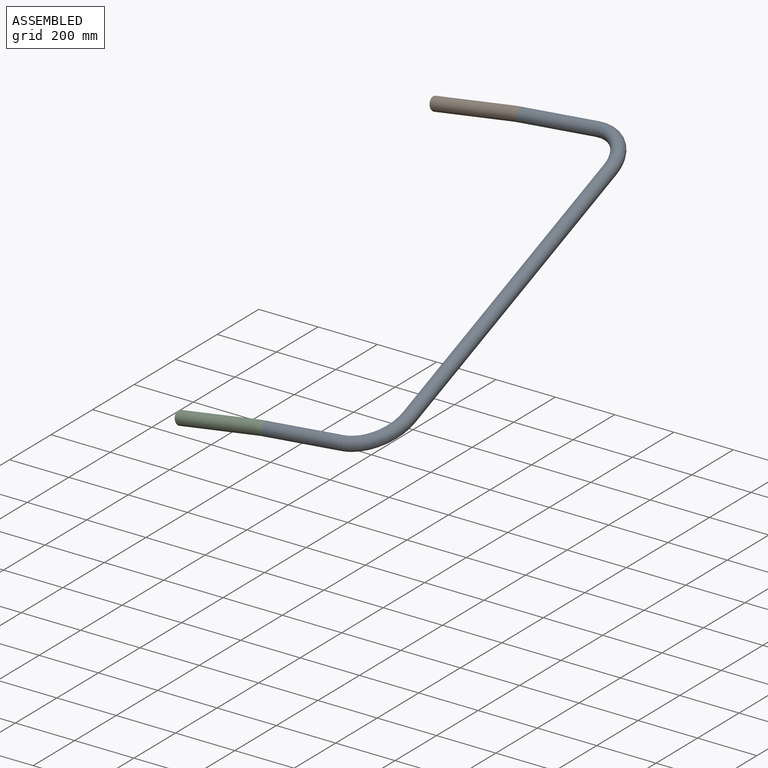
[diagram: assembled view]
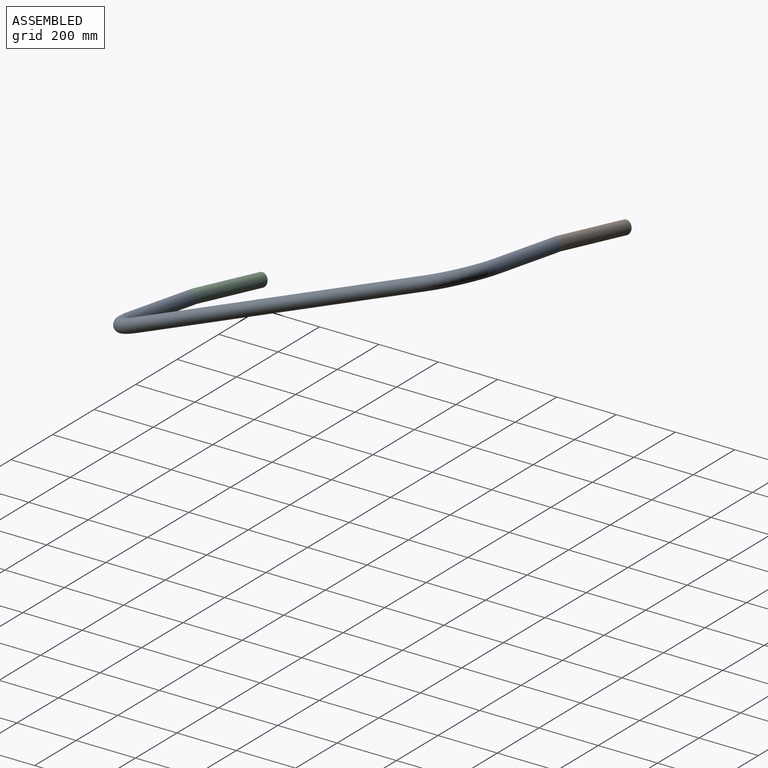
[diagram: assembled view, second angle]
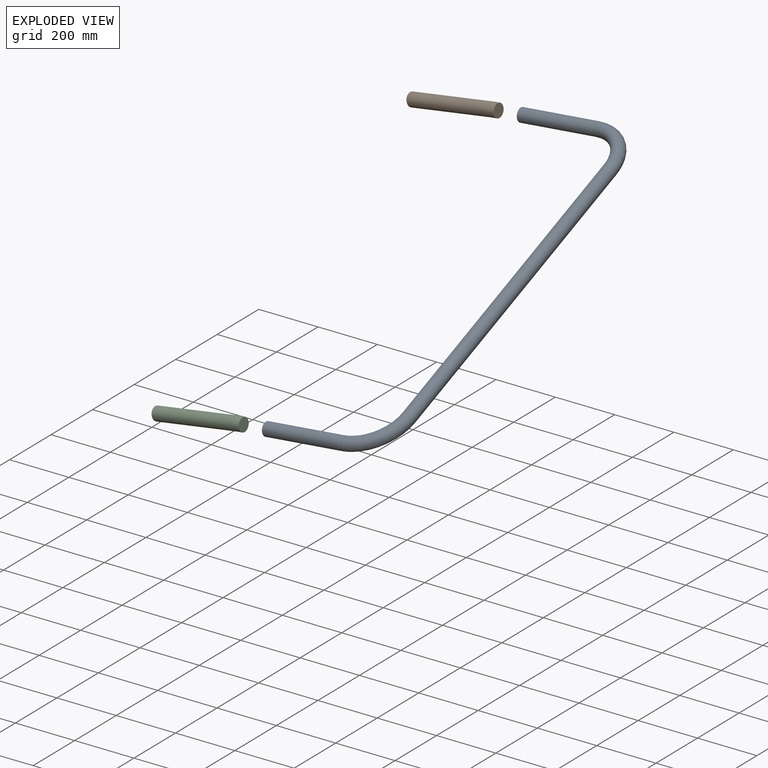
[diagram: exploded view]
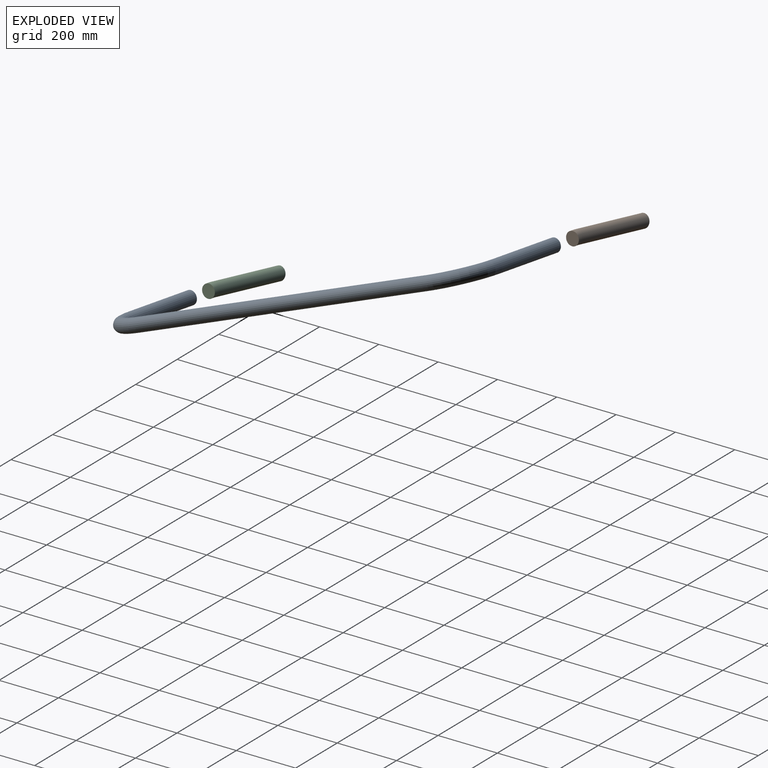
[diagram: exploded view, second angle]
ASSEMBLY  parts=3 mates=2
PART A: 7 faces, bbox 442x1391.9x44.5 mm
  f0: plane 44.45x44.45mm, normal (-1,0,0), area 1551.8mm2, adj f2
  f1: plane 44.45x44.45mm, normal (-1,0,0), area 1551.8mm2, adj f6
  f2: cylinder r=22.23mm len=266.7mm, axis (1,0,0), area 37243mm2, adj f0,f3
  f3: torus R=139.7mm, axis (0,0,-1), area 30643.5mm2, adj f2,f4
  f4: cylinder r=22.23mm len=1041.4mm, axis (0,-1,0), area 145425mm2, adj f3,f5
  f5: torus R=139.7mm, axis (0,0,-1), area 30643.5mm2, adj f4,f6
  f6: cylinder r=22.23mm len=266.7mm, axis (-1,0,0), area 37243mm2, adj f1,f5
PART B: 4 faces, bbox 88.9x317.6x45.8 mm
  f0: plane 44.45x44.34mm, normal (0,1,-0.07), area 1551.8mm2, adj f2
  f1: plane 44.45x44.34mm, normal (0,-1,-0.07), area 1551.8mm2, adj f3
  f2: bspline ~88.9x45.77mm, area 2733.4mm2, adj f0,f3
  f3: bspline ~298.14x88.9mm, area 41228.3mm2, adj f1,f2
PART C: same geometry as B
PLACE A rot(axis=(0.94,-0.33,-0.06),23deg) t=(-152.81,-124.67,99.17)mm
PLACE B rot(axis=(0.28,0.08,-0.96),94.7deg) t=(-565.38,404.2,251.02)mm
PLACE C rot(axis=(0.28,0.08,-0.96),94.7deg) t=(-565.38,-823.01,-237.32)mm
MATE fastened B.f0 <-> A.f2  axis (0.99,-0.05,0.12) through (-555.67,403.85,251.9)mm
MATE fastened C.f0 <-> A.f6  axis (0.99,-0.05,0.12) through (-555.67,-823.36,-236.44)mm
